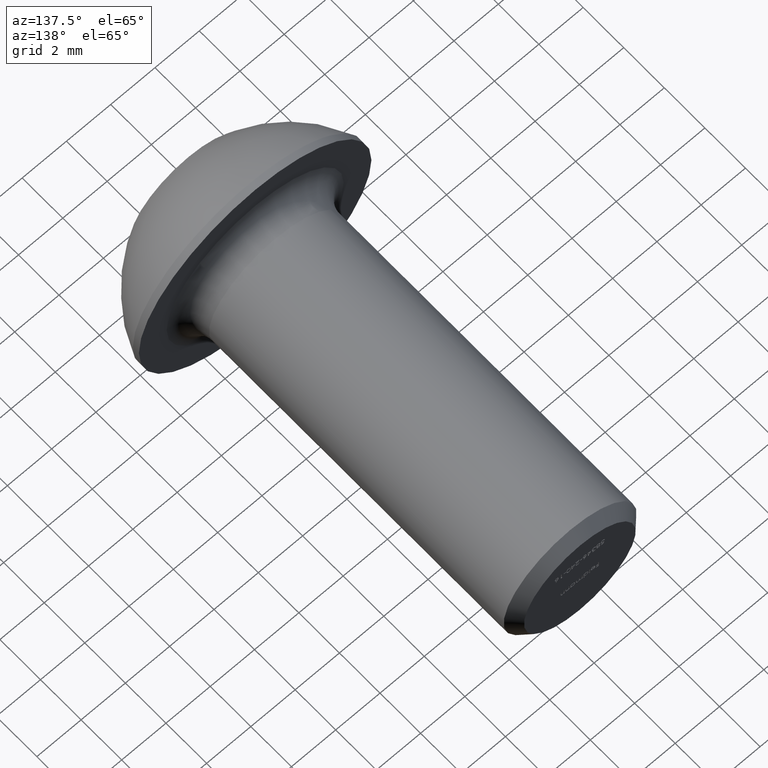
[diagram: clean part render]
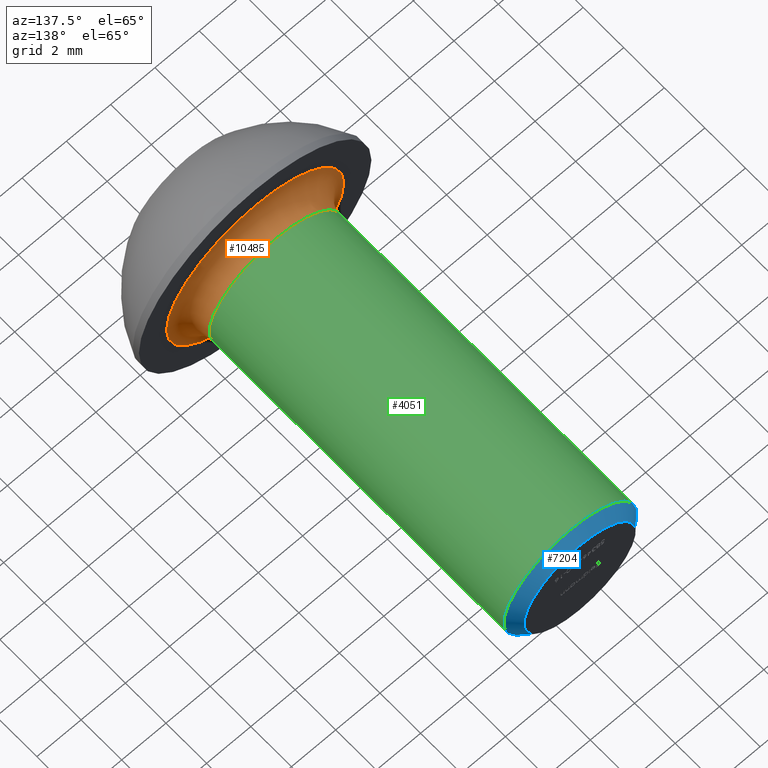
[diagram: same view with three faces highlighted in distinct colors, each labeled with its STEP entity id]
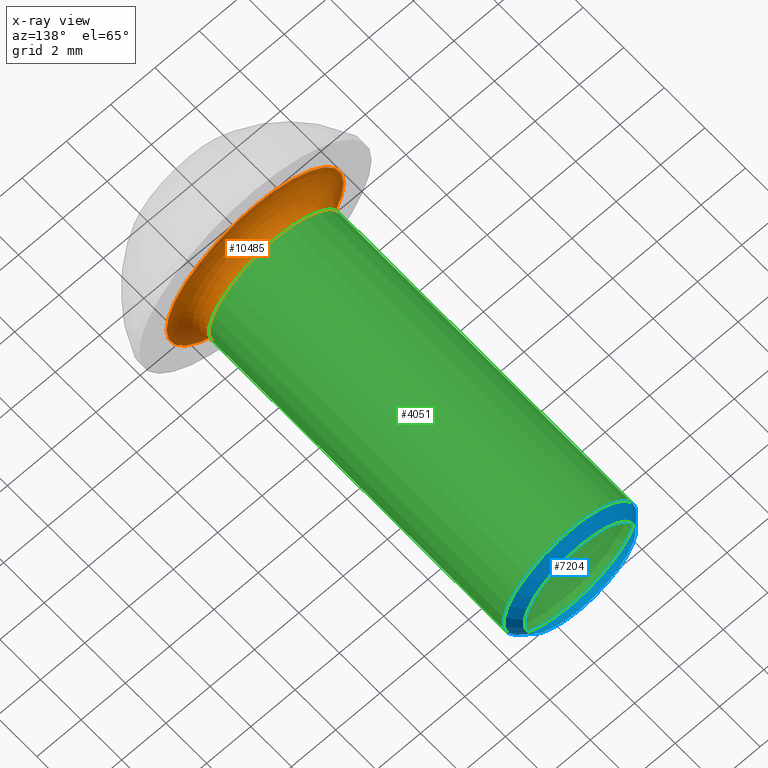
[diagram: x-ray of the same camera — body ghosted, the three highlighted faces saturated]
A machine part, auxiliary view with three faces highlighted in distinct colors.
The next image is the same camera in x-ray (body ghosted, the three faces saturated) — at least one of them is partly hidden behind the body in this view.
Their STEP definitions:

[orange] entity #10485 — the highlighted toroidal blend (fillet) surface has major radius 4 mm and minor (blend) radius 1 mm.
#503 = EDGE_LOOP ( 'NONE', ( #13540 ) ) ;
#1489 = AXIS2_PLACEMENT_3D ( 'NONE', #6911, #9281, #8088 ) ;
#1617 = CIRCLE ( 'NONE', #10134, 3.999999999999997300 ) ;
#1810 = AXIS2_PLACEMENT_3D ( 'NONE', #8180, #8283, #2203 ) ;
#2203 = DIRECTION ( 'NONE',  ( 0.0000000000000000000, 0.0000000000000000000, -1.000000000000000000 ) ) ;
#3738 = CARTESIAN_POINT ( 'NONE',  ( 0.0000000000000000000, 3.299999999999999800, -3.999999999999997300 ) ) ;
#4171 = FACE_OUTER_BOUND ( 'NONE', #503, .T. ) ;
#4238 = ORIENTED_EDGE ( 'NONE', *, *, #5651, .F. ) ;
#4546 = EDGE_CURVE ( 'NONE', #12853, #12853, #1617, .T. ) ;
#4846 = EDGE_LOOP ( 'NONE', ( #4238 ) ) ;
#5394 = VERTEX_POINT ( 'NONE', #14544 ) ;
#5651 = EDGE_CURVE ( 'NONE', #5394, #5394, #5704, .T. ) ;
#5704 = CIRCLE ( 'NONE', #1489, 2.999999999999997300 ) ;
#6911 = CARTESIAN_POINT ( 'NONE',  ( 0.0000000000000000000, 4.299999999999999800, 0.0000000000000000000 ) ) ;
#8088 = DIRECTION ( 'NONE',  ( 0.0000000000000000000, 0.0000000000000000000, -1.000000000000000000 ) ) ;
#8180 = CARTESIAN_POINT ( 'NONE',  ( 0.0000000000000000000, 4.299999999999999800, 0.0000000000000000000 ) ) ;
#8283 = DIRECTION ( 'NONE',  ( -0.0000000000000000000, -1.000000000000000000, -0.0000000000000000000 ) ) ;
#8331 = CARTESIAN_POINT ( 'NONE',  ( 0.0000000000000000000, 3.299999999999999800, 0.0000000000000000000 ) ) ;
#9281 = DIRECTION ( 'NONE',  ( 0.0000000000000000000, 1.000000000000000000, 0.0000000000000000000 ) ) ;
#10134 = AXIS2_PLACEMENT_3D ( 'NONE', #8331, #13093, #10732 ) ;
#10485 = ADVANCED_FACE ( 'NONE', ( #10491, #4171 ), #14820, .F. ) ;
#10491 = FACE_OUTER_BOUND ( 'NONE', #4846, .T. ) ;
#10732 = DIRECTION ( 'NONE',  ( 0.0000000000000000000, 0.0000000000000000000, -1.000000000000000000 ) ) ;
#12853 = VERTEX_POINT ( 'NONE', #3738 ) ;
#13093 = DIRECTION ( 'NONE',  ( -0.0000000000000000000, -1.000000000000000000, -0.0000000000000000000 ) ) ;
#13540 = ORIENTED_EDGE ( 'NONE', *, *, #4546, .F. ) ;
#14544 = CARTESIAN_POINT ( 'NONE',  ( 0.0000000000000000000, 4.299999999999999800, -2.999999999999997300 ) ) ;
#14820 = TOROIDAL_SURFACE ( 'NONE', #1810, 3.999999999999997300, 1.000000000000000000 ) ;

[blue] entity #7204 — the highlighted conical surface has half-angle 45 deg.
#62 = EDGE_LOOP ( 'NONE', ( #10816 ) ) ;
#669 = CARTESIAN_POINT ( 'NONE',  ( 0.0000000000000000000, 19.29999999999999700, 0.0000000000000000000 ) ) ;
#1771 = CARTESIAN_POINT ( 'NONE',  ( 0.0000000000000000000, 18.82269999999999800, 0.0000000000000000000 ) ) ;
#2108 = DIRECTION ( 'NONE',  ( -0.0000000000000000000, -1.000000000000000000, -0.0000000000000000000 ) ) ;
#3020 = DIRECTION ( 'NONE',  ( 0.0000000000000000000, 0.0000000000000000000, -1.000000000000000000 ) ) ;
#5407 = ORIENTED_EDGE ( 'NONE', *, *, #15232, .T. ) ;
#5439 = DIRECTION ( 'NONE',  ( -0.0000000000000000000, -1.000000000000000000, -0.0000000000000000000 ) ) ;
#6587 = DIRECTION ( 'NONE',  ( 0.0000000000000000000, 0.0000000000000000000, -1.000000000000000000 ) ) ;
#6988 = CONICAL_SURFACE ( 'NONE', #14277, 2.522700000000002600, 0.7853981633974410600 ) ;
#7204 = ADVANCED_FACE ( 'NONE', ( #11260, #8265 ), #6988, .T. ) ;
#8265 = FACE_BOUND ( 'NONE', #13653, .T. ) ;
#8787 = AXIS2_PLACEMENT_3D ( 'NONE', #9132, #2108, #11474 ) ;
#9132 = CARTESIAN_POINT ( 'NONE',  ( 0.0000000000000000000, 19.29999999999999700, 0.0000000000000000000 ) ) ;
#9954 = EDGE_CURVE ( 'NONE', #15317, #15317, #14909, .T. ) ;
#10221 = CIRCLE ( 'NONE', #8787, 2.522700000000002600 ) ;
#10816 = ORIENTED_EDGE ( 'NONE', *, *, #9954, .F. ) ;
#10960 = CARTESIAN_POINT ( 'NONE',  ( 0.0000000000000000000, 19.29999999999999700, -2.522700000000002600 ) ) ;
#11260 = FACE_OUTER_BOUND ( 'NONE', #62, .T. ) ;
#11474 = DIRECTION ( 'NONE',  ( 0.0000000000000000000, 0.0000000000000000000, -1.000000000000000000 ) ) ;
#12122 = CARTESIAN_POINT ( 'NONE',  ( 0.0000000000000000000, 18.82269999999999800, -2.999999999999995600 ) ) ;
#13653 = EDGE_LOOP ( 'NONE', ( #5407 ) ) ;
#13697 = DIRECTION ( 'NONE',  ( -0.0000000000000000000, -1.000000000000000000, -0.0000000000000000000 ) ) ;
#13794 = VERTEX_POINT ( 'NONE', #10960 ) ;
#14277 = AXIS2_PLACEMENT_3D ( 'NONE', #669, #5439, #6587 ) ;
#14909 = CIRCLE ( 'NONE', #15210, 2.999999999999995600 ) ;
#15210 = AXIS2_PLACEMENT_3D ( 'NONE', #1771, #13697, #3020 ) ;
#15232 = EDGE_CURVE ( 'NONE', #13794, #13794, #10221, .T. ) ;
#15317 = VERTEX_POINT ( 'NONE', #12122 ) ;

[green] entity #4051 — the highlighted cylindrical surface (bore or boss wall) has radius 3 mm, axis along (-0, -1, -0).
#1489 = AXIS2_PLACEMENT_3D ( 'NONE', #6911, #9281, #8088 ) ;
#1771 = CARTESIAN_POINT ( 'NONE',  ( 0.0000000000000000000, 18.82269999999999800, 0.0000000000000000000 ) ) ;
#1790 = ORIENTED_EDGE ( 'NONE', *, *, #9954, .T. ) ;
#2168 = AXIS2_PLACEMENT_3D ( 'NONE', #2504, #3681, #13229 ) ;
#2504 = CARTESIAN_POINT ( 'NONE',  ( 0.0000000000000000000, 0.0000000000000000000, 0.0000000000000000000 ) ) ;
#3020 = DIRECTION ( 'NONE',  ( 0.0000000000000000000, 0.0000000000000000000, -1.000000000000000000 ) ) ;
#3121 = FACE_OUTER_BOUND ( 'NONE', #9682, .T. ) ;
#3681 = DIRECTION ( 'NONE',  ( -0.0000000000000000000, -1.000000000000000000, -0.0000000000000000000 ) ) ;
#3695 = EDGE_LOOP ( 'NONE', ( #1790 ) ) ;
#4051 = ADVANCED_FACE ( 'NONE', ( #3121, #9811 ), #6282, .T. ) ;
#5143 = ORIENTED_EDGE ( 'NONE', *, *, #5651, .T. ) ;
#5394 = VERTEX_POINT ( 'NONE', #14544 ) ;
#5651 = EDGE_CURVE ( 'NONE', #5394, #5394, #5704, .T. ) ;
#5704 = CIRCLE ( 'NONE', #1489, 2.999999999999997300 ) ;
#6282 = CYLINDRICAL_SURFACE ( 'NONE', #2168, 2.999999999999997300 ) ;
#6911 = CARTESIAN_POINT ( 'NONE',  ( 0.0000000000000000000, 4.299999999999999800, 0.0000000000000000000 ) ) ;
#8088 = DIRECTION ( 'NONE',  ( 0.0000000000000000000, 0.0000000000000000000, -1.000000000000000000 ) ) ;
#9281 = DIRECTION ( 'NONE',  ( 0.0000000000000000000, 1.000000000000000000, 0.0000000000000000000 ) ) ;
#9682 = EDGE_LOOP ( 'NONE', ( #5143 ) ) ;
#9811 = FACE_OUTER_BOUND ( 'NONE', #3695, .T. ) ;
#9954 = EDGE_CURVE ( 'NONE', #15317, #15317, #14909, .T. ) ;
#12122 = CARTESIAN_POINT ( 'NONE',  ( 0.0000000000000000000, 18.82269999999999800, -2.999999999999995600 ) ) ;
#13229 = DIRECTION ( 'NONE',  ( 0.0000000000000000000, 0.0000000000000000000, -1.000000000000000000 ) ) ;
#13697 = DIRECTION ( 'NONE',  ( -0.0000000000000000000, -1.000000000000000000, -0.0000000000000000000 ) ) ;
#14544 = CARTESIAN_POINT ( 'NONE',  ( 0.0000000000000000000, 4.299999999999999800, -2.999999999999997300 ) ) ;
#14909 = CIRCLE ( 'NONE', #15210, 2.999999999999995600 ) ;
#15210 = AXIS2_PLACEMENT_3D ( 'NONE', #1771, #13697, #3020 ) ;
#15317 = VERTEX_POINT ( 'NONE', #12122 ) ;